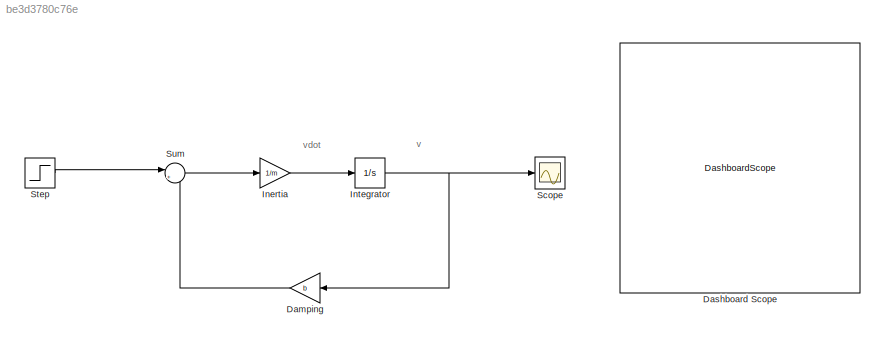
MODEL slx_be3d3780c76e
KIND model
CONFIG AbsTol = auto
CONFIG EnableMultiTasking = off
CONFIG FixedStep = auto
CONFIG MaxStep = auto
CONFIG MinStep = auto
CONFIG PostLoadFcn = u=10;\nm=0.05;\nb=0.0015;\n
CONFIG RelTol = 1e-3
CONFIG SampleTimeConstraint = Unconstrained
CONFIG Solver = VariableStepAuto
CONFIG SolverName = VariableStepAuto
CONFIG StartTime = 0.0
CONFIG StopTime = 10
BLOCK [Gain] Damping
  Gain = b
BLOCK [DashboardScope] Dashboard Scope
BLOCK [Gain] Inertia
  Gain = 1/m
BLOCK [Integrator] Integrator
  Ports = [1, 1]
BLOCK [Scope] Scope
  Floating = off
  NumInputPorts = 1
  Ports = [1]
  ScopeSpecificationString = Simulink.scopes.TimeScopeBlockCfg('CurrentConfiguration', extmgr.ConfigurationSet(extmgr.Configuration('Core','General UI',true),extmgr.Configuration('Core','Source UI',true),extmgr.Configuration('Sources','WiredSimulink',true),extmgr.Configuration('Visuals','Time Domain',true,'SerializedDisplays',{struct('MinYLimReal','-116.07669','MaxYLimReal','1044.69018','YLabelReal','','MinYLimMag',' 0.00000'...<+1403ch>
BLOCK [Step] Step
  After = u
  SampleTime = 0
  Time = 5
BLOCK [Sum] Sum
  Inputs = |+-
  Ports = [2, 1]
ANNOTATION (root): v
ANNOTATION (root): vdot
LINE Damping:1 -> Sum:2
LINE Inertia:1 -> Integrator:1
NET Integrator:1 -> Damping:1, Scope:1
LINE Step:1 -> Sum:1
LINE Sum:1 -> Inertia:1
note: NET lines group one-source signal fan-out (src -> all destinations, sorted); 1:1 wires keep LINE
